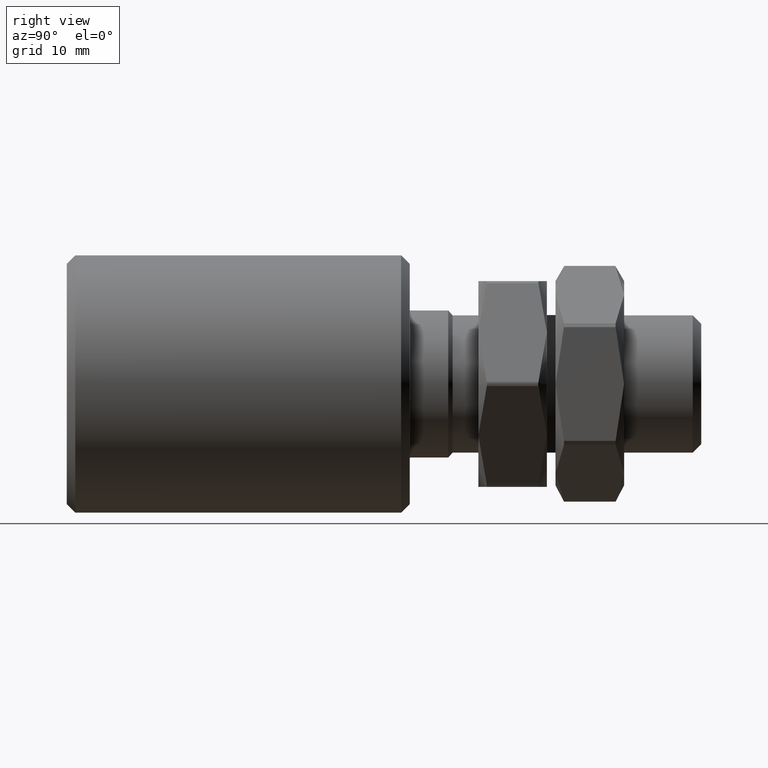
[diagram: clean part render]
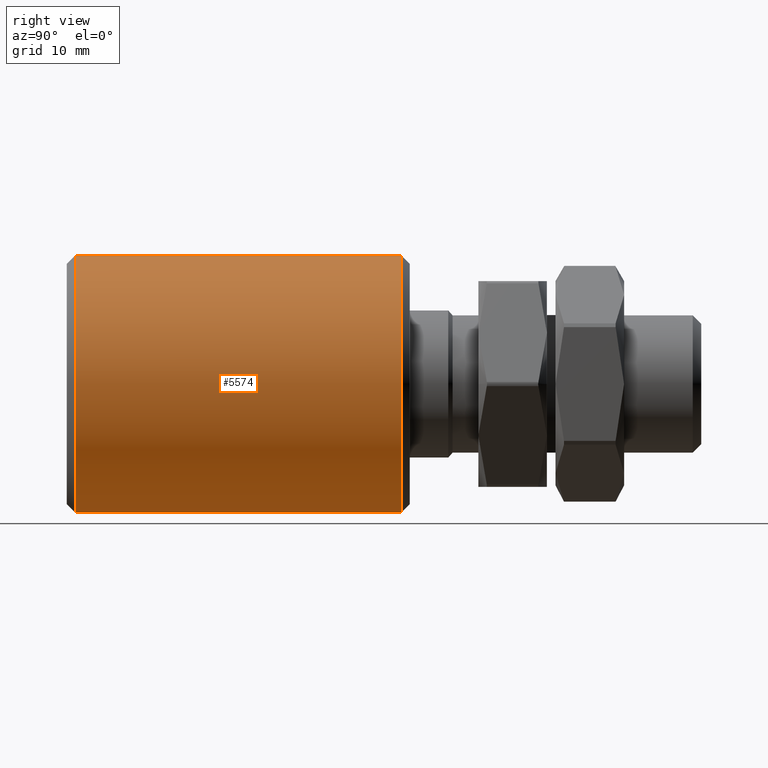
[diagram: same view with one face highlighted and labeled with its STEP entity id]
A machine part, right view. The second image highlights one B-rep face of the part: STEP entity #5574.
In plain terms, the highlighted cylindrical surface (partial cylindrical patch) has radius 15 mm, axis along (-0, -1, -0).
Its self-contained STEP definition (entity closure, byte-faithful):
#1204 = AXIS2_PLACEMENT_3D ( 'NONE', #3139, #6854, #14415 ) ;
#2177 = VERTEX_POINT ( 'NONE', #10073 ) ;
#3071 = ORIENTED_EDGE ( 'NONE', *, *, #8318, .T. ) ;
#3117 = EDGE_LOOP ( 'NONE', ( #7297, #8773, #3071, #5230 ) ) ;
#3139 = CARTESIAN_POINT ( 'NONE',  ( 0.000000000000000000, 0.000000000000000000, 0.000000000000000000 ) ) ;
#4460 = VECTOR ( 'NONE', #9743, 1000.000000000000000 ) ;
#5129 = DIRECTION ( 'NONE',  ( -0.000000000000000000, -1.000000000000000000, -0.000000000000000000 ) ) ;
#5230 = ORIENTED_EDGE ( 'NONE', *, *, #15196, .F. ) ;
#5574 = ADVANCED_FACE ( 'NONE', ( #9557 ), #6224, .T. ) ;
#5969 = CARTESIAN_POINT ( 'NONE',  ( 0.000000000000000000, 0.000000000000000000, -15.00000000000000533 ) ) ;
#6224 = CYLINDRICAL_SURFACE ( 'NONE', #1204, 15.00000000000000533 ) ;
#6337 = DIRECTION ( 'NONE',  ( 0.000000000000000000, 0.000000000000000000, 1.000000000000000000 ) ) ;
#6457 = AXIS2_PLACEMENT_3D ( 'NONE', #11663, #7838, #11716 ) ;
#6854 = DIRECTION ( 'NONE',  ( -0.000000000000000000, -1.000000000000000000, -0.000000000000000000 ) ) ;
#7297 = ORIENTED_EDGE ( 'NONE', *, *, #7356, .T. ) ;
#7356 = EDGE_CURVE ( 'NONE', #2177, #12736, #15226, .T. ) ;
#7838 = DIRECTION ( 'NONE',  ( 0.000000000000000000, 1.000000000000000000, 0.000000000000000000 ) ) ;
#8318 = EDGE_CURVE ( 'NONE', #10999, #14442, #15611, .T. ) ;
#8757 = CARTESIAN_POINT ( 'NONE',  ( 0.000000000000000000, 38.99999999999999289, 0.000000000000000000 ) ) ;
#8773 = ORIENTED_EDGE ( 'NONE', *, *, #14794, .T. ) ;
#9297 = AXIS2_PLACEMENT_3D ( 'NONE', #8757, #5129, #6337 ) ;
#9539 = LINE ( 'NONE', #5969, #4460 ) ;
#9557 = FACE_OUTER_BOUND ( 'NONE', #3117, .T. ) ;
#9706 = CARTESIAN_POINT ( 'NONE',  ( 1.836970198721030378E-15, 0.000000000000000000, 15.00000000000000533 ) ) ;
#9743 = DIRECTION ( 'NONE',  ( -0.000000000000000000, -1.000000000000000000, -0.000000000000000000 ) ) ;
#10073 = CARTESIAN_POINT ( 'NONE',  ( 0.000000000000000000, 38.99999999999999289, -15.00000000000000533 ) ) ;
#10873 = CARTESIAN_POINT ( 'NONE',  ( 0.000000000000000000, 0.9999999999999954481, -15.00000000000000533 ) ) ;
#10999 = VERTEX_POINT ( 'NONE', #14255 ) ;
#11291 = LINE ( 'NONE', #9706, #13664 ) ;
#11663 = CARTESIAN_POINT ( 'NONE',  ( 0.000000000000000000, 0.9999999999999954481, 0.000000000000000000 ) ) ;
#11716 = DIRECTION ( 'NONE',  ( 0.000000000000000000, 0.000000000000000000, -1.000000000000000000 ) ) ;
#12403 = DIRECTION ( 'NONE',  ( -0.000000000000000000, -1.000000000000000000, -0.000000000000000000 ) ) ;
#12736 = VERTEX_POINT ( 'NONE', #13301 ) ;
#13301 = CARTESIAN_POINT ( 'NONE',  ( 1.836970198721030378E-15, 38.99999999999999289, 15.00000000000000533 ) ) ;
#13664 = VECTOR ( 'NONE', #12403, 1000.000000000000000 ) ;
#14255 = CARTESIAN_POINT ( 'NONE',  ( 1.836970198721030378E-15, 0.9999999999999954481, 15.00000000000000533 ) ) ;
#14415 = DIRECTION ( 'NONE',  ( 0.000000000000000000, 0.000000000000000000, -1.000000000000000000 ) ) ;
#14442 = VERTEX_POINT ( 'NONE', #10873 ) ;
#14794 = EDGE_CURVE ( 'NONE', #12736, #10999, #11291, .T. ) ;
#15196 = EDGE_CURVE ( 'NONE', #2177, #14442, #9539, .T. ) ;
#15226 = CIRCLE ( 'NONE', #9297, 15.00000000000000533 ) ;
#15611 = CIRCLE ( 'NONE', #6457, 15.00000000000000533 ) ;